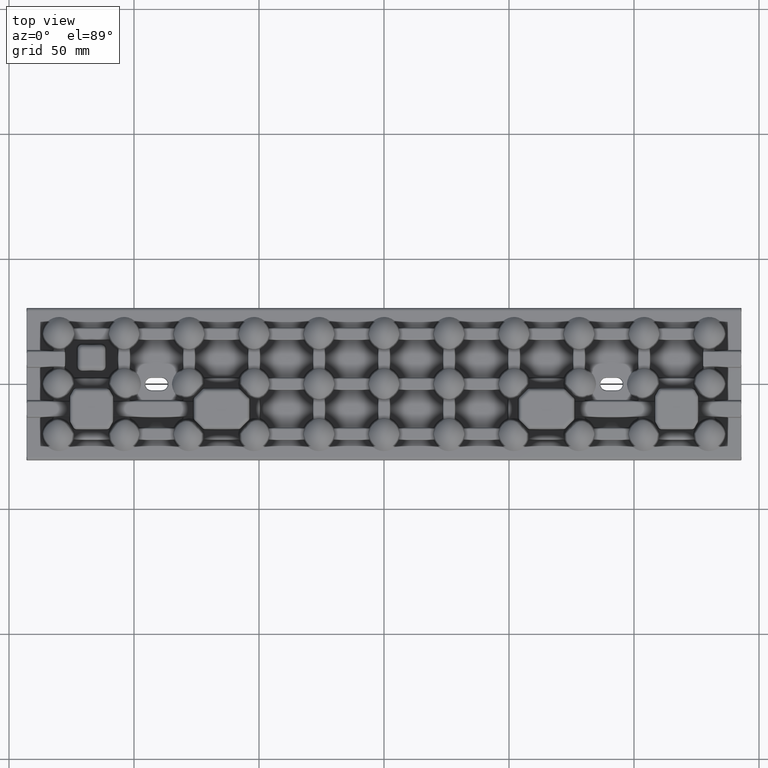
[diagram: clean part render]
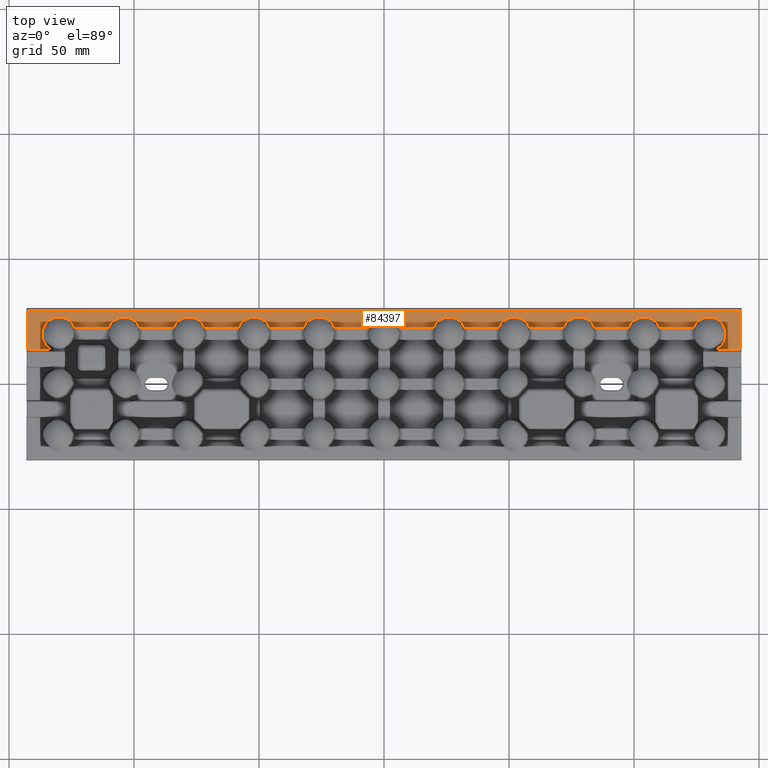
[diagram: same view with one face highlighted and labeled with its STEP entity id]
A machine part, top view. The second image highlights one B-rep face of the part: STEP entity #84397.
In plain terms, the highlighted planar face has unit normal (-0, 0, 1).
Its self-contained STEP definition (entity closure, byte-faithful):
#18 = LINE ( 'NONE', #66685, #66836 ) ;
#334 = VECTOR ( 'NONE', #104928, 1000.000000000000000 ) ;
#450 = B_SPLINE_CURVE_WITH_KNOTS ( 'NONE', 3,
 ( #22197, #72360, #89164, #39020, #97628, #47506, #106020, #55932, #5751, #64315, #14149, #72737, #22551, #81112, #30996, #89539, #39382, #97997, #47874, #106379, #56297, #6123, #64674, #14516, #73091, #22933, #81480, #31366, #89921, #39765, #98356, #48244 ),
 .UNSPECIFIED., .F., .F.,
 ( 4, 2, 2, 2, 2, 2, 2, 2, 2, 2, 2, 2, 2, 2, 2, 4 ),
 ( 0.01057141116991428300, 0.01154738486833096900, 0.01252335856674765600, 0.01447530596358102800, 0.01545127966199773100, 0.01642725336041443400, 0.01740322705883113800, 0.01837920075724783900, 0.01935517445566454400, 0.02033114815408124800, 0.02130712185249795200, 0.02228309555091465700, 0.02325906924933135400, 0.02423504294774805900, 0.02521101664616476300, 0.02618699034458146800 ),
 .UNSPECIFIED. ) ;
#949 = CARTESIAN_POINT ( 'NONE',  ( -23.44437529843119000, 26.33891143975803900, 2.000000000000348200 ) ) ;
#1567 = CARTESIAN_POINT ( 'NONE',  ( 84.15196062444513800, 22.74142219370215700, 2.000000000000000000 ) ) ;
#1578 = CARTESIAN_POINT ( 'NONE',  ( -98.65718234759718500, 24.15163868362476400, 2.000000000000082200 ) ) ;
#1692 = CARTESIAN_POINT ( 'NONE',  ( -123.8480393755548500, 22.74142219370217100, 2.000000000000000000 ) ) ;
#1933 = CARTESIAN_POINT ( 'NONE',  ( -105.2936219621999500, 26.72046173931110900, 2.000000000000000400 ) ) ;
#2221 = ORIENTED_EDGE ( 'NONE', *, *, #40043, .F. ) ;
#2292 = CARTESIAN_POINT ( 'NONE',  ( -110.0192427180098300, 23.04131414424451700, 1.999999999999998700 ) ) ;
#2368 = CARTESIAN_POINT ( 'NONE',  ( -142.4984859507544300, 13.77131854326629700, 2.000000000000000000 ) ) ;
#2829 = CARTESIAN_POINT ( 'NONE',  ( -29.41731962113369300, 25.90276748049692700, 2.000000000000001300 ) ) ;
#2964 = CARTESIAN_POINT ( 'NONE',  ( 83.87140888272630000, 23.32540910116443200, 2.000000000000000000 ) ) ;
#3043 = CARTESIAN_POINT ( 'NONE',  ( -8.743261924239526700E-015, 22.74142219370212500, 2.000000000000000000 ) ) ;
#3327 = CARTESIAN_POINT ( 'NONE',  ( 77.68442523031507100, 26.83853051785804700, 2.000000000000218900 ) ) ;
#3536 = ORIENTED_EDGE ( 'NONE', *, *, #32921, .T. ) ;
#3561 = ORIENTED_EDGE ( 'NONE', *, *, #34189, .F. ) ;
#3672 = CARTESIAN_POINT ( 'NONE',  ( 72.47237995112048700, 23.88979952692019600, 2.000000000000000400 ) ) ;
#3751 = CARTESIAN_POINT ( 'NONE',  ( -49.44437529843121100, 26.33891143975802500, 2.000000000000345500 ) ) ;
#3771 = B_SPLINE_CURVE_WITH_KNOTS ( 'NONE', 3,
 ( #28653, #20207, #70031, #87182, #37047, #95649, #45509, #104075, #53961, #3751, #62350, #12192, #70733, #20567, #79164, #29004, #87537, #37408, #95997, #45866, #104417, #54335, #4113, #62692, #12534, #71098, #20927, #79499, #29364, #87915, #37768, #96360 ),
 .UNSPECIFIED., .F., .F.,
 ( 4, 2, 2, 2, 2, 2, 2, 2, 2, 2, 2, 2, 2, 2, 2, 4 ),
 ( 0.01057141116991420900, 0.01154738486833090300, 0.01252335856674759700, 0.01447530596358099900, 0.01545127966199769800, 0.01642725336041439900, 0.01740322705883110000, 0.01837920075724780100, 0.01935517445566450200, 0.02033114815408120300, 0.02130712185249790400, 0.02228309555091460500, 0.02325906924933130600, 0.02423504294774800700, 0.02521101664616470800, 0.02618699034458140900 ),
 .UNSPECIFIED. ) ;
#3879 = VERTEX_POINT ( 'NONE', #2368 ) ;
#4002 = CARTESIAN_POINT ( 'NONE',  ( 110.0207620047317600, 23.03787826858629400, 2.000000000000023500 ) ) ;
#4113 = CARTESIAN_POINT ( 'NONE',  ( -55.41731962113367900, 25.90276748049694400, 1.999999999999999600 ) ) ;
#4360 = CARTESIAN_POINT ( 'NONE',  ( 105.6296841366106200, 26.64539749742891000, 2.000000000000625300 ) ) ;
#4733 = CARTESIAN_POINT ( 'NONE',  ( 99.78590605432748400, 25.33997753279581000, 1.999999999999999600 ) ) ;
#4806 = CARTESIAN_POINT ( 'NONE',  ( -127.6744380396608800, 26.44532750188053400, 2.000000000000000400 ) ) ;
#5071 = CARTESIAN_POINT ( 'NONE',  ( 136.3675877566048500, 17.74256149048456500, 1.999999999999999600 ) ) ;
#5178 = CARTESIAN_POINT ( 'NONE',  ( -134.3702181613340400, 25.22732292226714900, 2.000000000000000900 ) ) ;
#5450 = CARTESIAN_POINT ( 'NONE',  ( 136.0262446763801200, 23.05667322217266200, 2.000000000000001300 ) ) ;
#5559 = CARTESIAN_POINT ( 'NONE',  ( -136.8391399828375700, 19.88003251086326600, 2.000000000000000900 ) ) ;
#5751 = CARTESIAN_POINT ( 'NONE',  ( -74.85653935513144600, 26.05896061262566500, 2.000000000000347700 ) ) ;
#5921 = CARTESIAN_POINT ( 'NONE',  ( -133.7449493275373400, 14.31046766925076600, 2.000000000000000400 ) ) ;
#6123 = CARTESIAN_POINT ( 'NONE',  ( -81.13050794176584200, 26.06605830409206000, 2.000000000000000000 ) ) ;
#6202 = B_SPLINE_CURVE_WITH_KNOTS ( 'NONE', 3,
 ( #31971, #40737, #99326, #49208, #107708, #57613, #7457, #66008, #15862, #74416, #24249, #82798, #32666, #91236, #41095, #99683, #49556, #108057, #57968, #7806, #66349, #16210, #74752, #24594, #83160, #33021, #91582, #41457, #100045, #49904, #108395, #58330 ),
 .UNSPECIFIED., .F., .F.,
 ( 4, 2, 2, 2, 2, 2, 2, 2, 2, 2, 2, 2, 2, 2, 2, 4 ),
 ( 0.01057141116991426400, 0.01154738486833096200, 0.01252335856674765900, 0.01447530596358104600, 0.01545127966199774000, 0.01642725336041443400, 0.01740322705883112800, 0.01837920075724782200, 0.01935517445566451600, 0.02033114815408121000, 0.02130712185249790400, 0.02228309555091459400, 0.02325906924933129200, 0.02423504294774798300, 0.02521101664616468000, 0.02618699034458137100 ),
 .UNSPECIFIED. ) ;
#6243 = CARTESIAN_POINT ( 'NONE',  ( 55.43101788131251300, 25.89457628167086900, 2.000000000000433900 ) ) ;
#6586 = VECTOR ( 'NONE', #96251, 1000.000000000000000 ) ;
#6601 = CARTESIAN_POINT ( 'NONE',  ( 49.46240690316457700, 26.34651873856308400, 2.000000000000000000 ) ) ;
#6602 = VERTEX_POINT ( 'NONE', #55331 ) ;
#6873 = VECTOR ( 'NONE', #65279, 1000.000000000000000 ) ;
#7311 = CARTESIAN_POINT ( 'NONE',  ( 129.2932381157706600, 26.80635551146549400, 2.000000000000023500 ) ) ;
#7457 = CARTESIAN_POINT ( 'NONE',  ( 30.24389875171748100, 25.34645184702481700, 2.000000000000433000 ) ) ;
#7652 = CARTESIAN_POINT ( 'NONE',  ( 71.84803801582891900, 22.74142219370215300, 2.000000000000000000 ) ) ;
#7663 = CARTESIAN_POINT ( 'NONE',  ( 123.9593216929385400, 22.99287836850768200, 1.999999999999999100 ) ) ;
#7678 = CARTESIAN_POINT ( 'NONE',  ( 4.721671804838689600, 24.91052300602595400, 2.000000000000082200 ) ) ;
#7806 = CARTESIAN_POINT ( 'NONE',  ( 23.76628688657680000, 26.46287864043587100, 2.000000000000000000 ) ) ;
#8045 = CARTESIAN_POINT ( 'NONE',  ( -1.611719585631966600, 26.64982454061431100, 2.000000000000000000 ) ) ;
#8400 = CARTESIAN_POINT ( 'NONE',  ( -6.151961984171039800, 22.74142219370212500, 2.000000000000000000 ) ) ;
#9057 = EDGE_CURVE ( 'NONE', #49669, #52571, #6202, .T. ) ;
#9174 = LINE ( 'NONE', #29617, #6586 ) ;
#9400 = CARTESIAN_POINT ( 'NONE',  ( -24.37031586338929000, 26.64539749742891000, 2.000000000000626600 ) ) ;
#10012 = CARTESIAN_POINT ( 'NONE',  ( -99.75610124828263300, 25.34645184702481700, 2.000000000000433400 ) ) ;
#10364 = CARTESIAN_POINT ( 'NONE',  ( -106.2337131134232100, 26.46287864043588900, 2.000000000000000000 ) ) ;
#11030 = CARTESIAN_POINT ( 'NONE',  ( 84.02076200473179300, 23.03787826858626500, 2.000000000000024000 ) ) ;
#11251 = CARTESIAN_POINT ( 'NONE',  ( -30.21409394567247400, 25.33997753279584200, 1.999999999999998700 ) ) ;
#11388 = CARTESIAN_POINT ( 'NONE',  ( 83.34281765240287100, 24.15163868362480700, 2.000000000000080800 ) ) ;
#11434 = VERTEX_POINT ( 'NONE', #35529 ) ;
#11738 = CARTESIAN_POINT ( 'NONE',  ( 76.70637803780013500, 26.72046173931110500, 2.000000000000000000 ) ) ;
#11995 = ORIENTED_EDGE ( 'NONE', *, *, #44793, .T. ) ;
#12110 = CARTESIAN_POINT ( 'NONE',  ( 71.98075728199016500, 23.04131414424447800, 1.999999999999999100 ) ) ;
#12192 = CARTESIAN_POINT ( 'NONE',  ( -50.37031586338929400, 26.64539749742892400, 2.000000000000625700 ) ) ;
#12470 = B_SPLINE_CURVE_WITH_KNOTS ( 'NONE', 3,
 ( #44689, #11030, #2964, #61536, #11388, #69947, #19775, #78372, #28218, #86734, #36614, #95208, #45074, #103635, #53524, #3327, #61912, #11738, #70303, #20140, #78737, #28567, #87106, #36972, #95570, #45430, #103996, #53882, #3672, #62267, #12110, #70659 ),
 .UNSPECIFIED., .F., .F.,
 ( 4, 2, 2, 2, 2, 2, 2, 2, 2, 2, 2, 2, 2, 2, 2, 4 ),
 ( 0.01057141116991425600, 0.01154738486833097700, 0.01252335856674769900, 0.01447530596358112500, 0.01545127966199785400, 0.01642725336041458300, 0.01740322705883131500, 0.01837920075724804700, 0.01935517445566477600, 0.02033114815408150500, 0.02130712185249823700, 0.02228309555091496900, 0.02325906924933169800, 0.02423504294774842700, 0.02521101664616515900, 0.02618699034458188800 ),
 .UNSPECIFIED. ) ;
#12534 = CARTESIAN_POINT ( 'NONE',  ( -56.21409394567246700, 25.33997753279584900, 2.000000000000000400 ) ) ;
#12786 = CARTESIAN_POINT ( 'NONE',  ( 104.6593584921966600, 26.81360181039919200, 2.000000000000006200 ) ) ;
#13124 = VECTOR ( 'NONE', #36339, 1000.000000000000000 ) ;
#13143 = ORIENTED_EDGE ( 'NONE', *, *, #23022, .T. ) ;
#13156 = CARTESIAN_POINT ( 'NONE',  ( 99.07405729496086600, 24.66061445378244000, 2.000000000000000000 ) ) ;
#13227 = CARTESIAN_POINT ( 'NONE',  ( -129.2795210807344700, 26.82214615123828600, 2.000000000000001800 ) ) ;
#13357 = CARTESIAN_POINT ( 'NONE',  ( -32.15196198417103800, 22.74142219370213500, 2.000000000000000000 ) ) ;
#13499 = CARTESIAN_POINT ( 'NONE',  ( 136.7185444569904900, 19.06772900883379100, 2.000000000000000400 ) ) ;
#13607 = CARTESIAN_POINT ( 'NONE',  ( -135.4697725086020100, 23.99765585386930800, 2.000000000000000400 ) ) ;
#13865 = CARTESIAN_POINT ( 'NONE',  ( 135.1351254606241800, 24.44019271961407800, 2.000000000000000400 ) ) ;
#13969 = CARTESIAN_POINT ( 'NONE',  ( -136.7682508985336100, 19.33309388607448700, 1.999999999999999600 ) ) ;
#14130 = CARTESIAN_POINT ( 'NONE',  ( -45.84803937555484100, 22.74142219370213900, 2.000000000000000000 ) ) ;
#14149 = CARTESIAN_POINT ( 'NONE',  ( -75.74716848546259500, 26.45610155375744200, 2.000000000000627100 ) ) ;
#14317 = CARTESIAN_POINT ( 'NONE',  ( -133.0371652792425700, 13.88754632978832100, 1.999999999999999600 ) ) ;
#14439 = ORIENTED_EDGE ( 'NONE', *, *, #34487, .T. ) ;
#14516 = CARTESIAN_POINT ( 'NONE',  ( -81.95797073317177700, 25.54024367878727400, 2.000000000000000400 ) ) ;
#14629 = CARTESIAN_POINT ( 'NONE',  ( 54.55562470156877500, 26.33891143975804600, 2.000000000000345500 ) ) ;
#15000 = CARTESIAN_POINT ( 'NONE',  ( 48.58268037886631400, 25.90276748049693000, 1.999999999999999600 ) ) ;
#15060 = VECTOR ( 'NONE', #62345, 1000.000000000000000 ) ;
#15724 = CARTESIAN_POINT ( 'NONE',  ( 128.2099995651465700, 26.61813430337587500, 2.000000000000089700 ) ) ;
#15862 = CARTESIAN_POINT ( 'NONE',  ( 29.14346064486860400, 26.05896061262564700, 2.000000000000347700 ) ) ;
#15996 = LINE ( 'NONE', #56911, #6873 ) ;
#16087 = CARTESIAN_POINT ( 'NONE',  ( 3.431017881312520500, 25.89457628167087200, 2.000000000000434300 ) ) ;
#16210 = CARTESIAN_POINT ( 'NONE',  ( 22.86949205823417900, 26.06605830409207400, 2.000000000000000000 ) ) ;
#16431 = CARTESIAN_POINT ( 'NONE',  ( -2.537593096835431900, 26.34651873856307300, 2.000000000000000400 ) ) ;
#17204 = VECTOR ( 'NONE', #29951, 1000.000000000000000 ) ;
#17440 = CARTESIAN_POINT ( 'NONE',  ( -19.84803937555484100, 22.74142219370212800, 2.000000000000000000 ) ) ;
#17589 = VERTEX_POINT ( 'NONE', #13357 ) ;
#18031 = CARTESIAN_POINT ( 'NONE',  ( -97.84803937555484800, 22.74142219370216000, 2.000000000000000000 ) ) ;
#18396 = CARTESIAN_POINT ( 'NONE',  ( -100.8565393551314000, 26.05896061262563300, 2.000000000000348200 ) ) ;
#18767 = CARTESIAN_POINT ( 'NONE',  ( -107.1305079417657700, 26.06605830409209900, 1.999999999999999600 ) ) ;
#19284 = CARTESIAN_POINT ( 'NONE',  ( -25.34064150780322700, 26.81360181039918800, 2.000000000000007500 ) ) ;
#19644 = CARTESIAN_POINT ( 'NONE',  ( -30.92594270503907300, 24.66061445378241500, 2.000000000000000900 ) ) ;
#19775 = CARTESIAN_POINT ( 'NONE',  ( 82.24389875171746700, 25.34645184702479500, 2.000000000000432100 ) ) ;
#19951 = ORIENTED_EDGE ( 'NONE', *, *, #20558, .F. ) ;
#19962 = CARTESIAN_POINT ( 'NONE',  ( -6.151961984171039800, 22.74142219370212500, 2.000000000000000000 ) ) ;
#20140 = CARTESIAN_POINT ( 'NONE',  ( 75.76628688657679300, 26.46287864043589300, 2.000000000000000900 ) ) ;
#20207 = CARTESIAN_POINT ( 'NONE',  ( -45.97923799526815000, 23.03787826858626500, 2.000000000000025300 ) ) ;
#20542 = EDGE_CURVE ( 'NONE', #49669, #95098, #50029, .T. ) ;
#20558 = EDGE_CURVE ( 'NONE', #33507, #67232, #3771, .T. ) ;
#20567 = CARTESIAN_POINT ( 'NONE',  ( -51.34064150780322700, 26.81360181039918100, 2.000000000000008400 ) ) ;
#20690 = ORIENTED_EDGE ( 'NONE', *, *, #20872, .T. ) ;
#20823 = CARTESIAN_POINT ( 'NONE',  ( 109.8714088827263000, 23.32540910116446400, 2.000000000000000000 ) ) ;
#20872 = EDGE_CURVE ( 'NONE', #33507, #17589, #39479, .T. ) ;
#20927 = CARTESIAN_POINT ( 'NONE',  ( -56.92594270503907000, 24.66061445378241500, 2.000000000000000900 ) ) ;
#20988 = B_SPLINE_CURVE_WITH_KNOTS ( 'NONE', 3,
 ( #18031, #34884, #101884, #51763, #1578, #60167, #10012, #68554, #18396, #76979, #26828, #85363, #35242, #93818, #43683, #102255, #52109, #1933, #60535, #10364, #68924, #18767, #77357, #27192, #85735, #35611, #94179, #44042, #102618, #52485, #2292, #60893 ),
 .UNSPECIFIED., .F., .F.,
 ( 4, 2, 2, 2, 2, 2, 2, 2, 2, 2, 2, 2, 2, 2, 2, 4 ),
 ( 0.01057141116991441900, 0.01154738486833110400, 0.01252335856674778900, 0.01447530596358118600, 0.01545127966199789900, 0.01642725336041461100, 0.01740322705883132600, 0.01837920075724804000, 0.01935517445566475200, 0.02033114815408146300, 0.02130712185249817800, 0.02228309555091489300, 0.02325906924933160400, 0.02423504294774831600, 0.02521101664616503000, 0.02618699034458174200 ),
 .UNSPECIFIED. ) ;
#21176 = EDGE_CURVE ( 'NONE', #24155, #17589, #31464, .T. ) ;
#21179 = CARTESIAN_POINT ( 'NONE',  ( 103.6844252303150000, 26.83853051785804300, 2.000000000000218500 ) ) ;
#21517 = CARTESIAN_POINT ( 'NONE',  ( 133.7508440218574900, 14.29423795403462100, 1.999999999999999100 ) ) ;
#21553 = CARTESIAN_POINT ( 'NONE',  ( 98.47237995112048700, 23.88979952692021100, 2.000000000000000000 ) ) ;
#21625 = CARTESIAN_POINT ( 'NONE',  ( -130.6442631379003100, 26.81266599383889100, 2.000000000000025800 ) ) ;
#21882 = CARTESIAN_POINT ( 'NONE',  ( 136.8239463917344700, 19.74946107886430700, 1.999999999999999100 ) ) ;
#21988 = CARTESIAN_POINT ( 'NONE',  ( -136.0146037593524400, 23.04607095764922400, 2.000000000000001800 ) ) ;
#22197 = CARTESIAN_POINT ( 'NONE',  ( -71.84803937555484800, 22.74142219370214900, 2.000000000000000000 ) ) ;
#22255 = CARTESIAN_POINT ( 'NONE',  ( 133.9552022225659600, 25.56083008111921700, 2.000000000000000900 ) ) ;
#22357 = CARTESIAN_POINT ( 'NONE',  ( -136.5331077790673900, 18.25631906052438700, 1.999999999999999600 ) ) ;
#22551 = CARTESIAN_POINT ( 'NONE',  ( -76.69340581394433800, 26.71782383062980800, 2.000000000000007100 ) ) ;
#22781 = CARTESIAN_POINT ( 'NONE',  ( 0.0000000000000000000, 13.77131854326629700, 2.000000000000000000 ) ) ;
#22933 = CARTESIAN_POINT ( 'NONE',  ( -82.69766114096128700, 24.90106938325972400, 2.000000000000000900 ) ) ;
#23022 = EDGE_CURVE ( 'NONE', #24155, #71206, #79907, .T. ) ;
#23048 = CARTESIAN_POINT ( 'NONE',  ( 53.62968413661066300, 26.64539749742891300, 2.000000000000626200 ) ) ;
#23406 = CARTESIAN_POINT ( 'NONE',  ( 47.78590605432753300, 25.33997753279584200, 2.000000000000000400 ) ) ;
#23465 = ORIENTED_EDGE ( 'NONE', *, *, #24884, .F. ) ;
#24105 = CARTESIAN_POINT ( 'NONE',  ( 126.9445230381564300, 26.10288935195688600, 2.000000000000000900 ) ) ;
#24155 = VERTEX_POINT ( 'NONE', #29825 ) ;
#24200 = DIRECTION ( 'NONE',  ( 1.000000000000000000, -3.844641663027053000E-016, 0.0000000000000000000 ) ) ;
#24249 = CARTESIAN_POINT ( 'NONE',  ( 28.25283151453744800, 26.45610155375743100, 2.000000000000626600 ) ) ;
#24473 = CARTESIAN_POINT ( 'NONE',  ( 2.555624701568800700, 26.33891143975803900, 2.000000000000345900 ) ) ;
#24594 = CARTESIAN_POINT ( 'NONE',  ( 22.04202926682820500, 25.54024367878726300, 2.000000000000001800 ) ) ;
#24826 = CARTESIAN_POINT ( 'NONE',  ( -3.417319621133669800, 25.90276748049693000, 2.000000000000000900 ) ) ;
#24884 = EDGE_CURVE ( 'NONE', #103681, #26551, #27928, .T. ) ;
#25449 = DIRECTION ( 'NONE',  ( -0.0000000000000000000, 1.000000000000000000, -0.0000000000000000000 ) ) ;
#25615 = VERTEX_POINT ( 'NONE', #98576 ) ;
#25832 = CARTESIAN_POINT ( 'NONE',  ( -20.12859111727369300, 23.32540910116439300, 2.000000000000000900 ) ) ;
#26454 = EDGE_CURVE ( 'NONE', #63053, #95098, #75547, .T. ) ;
#26551 = VERTEX_POINT ( 'NONE', #43862 ) ;
#26828 = CARTESIAN_POINT ( 'NONE',  ( -101.7471684854625800, 26.45610155375743100, 2.000000000000625700 ) ) ;
#26983 = EDGE_CURVE ( 'NONE', #69045, #11434, #29812, .T. ) ;
#27192 = CARTESIAN_POINT ( 'NONE',  ( -107.9579707331718200, 25.54024367878726300, 2.000000000000000900 ) ) ;
#27472 = ORIENTED_EDGE ( 'NONE', *, *, #9057, .F. ) ;
#27701 = CARTESIAN_POINT ( 'NONE',  ( -26.31557476968492200, 26.83853051785804300, 2.000000000000217600 ) ) ;
#27928 = B_SPLINE_CURVE_WITH_KNOTS ( 'NONE', 3,
 ( #37986, #63275, #21517, #80072, #29932, #88496, #38359, #96952, #46831, #105354, #55264, #5071, #63635, #13499, #72052, #21882, #80452, #30313, #88860, #38704, #97326, #47204, #105719, #55645, #5450, #64007, #13865, #72434, #22255, #80814, #30690, #89227, #39084, #97690, #47575, #106093, #55989, #7311, #65859, #15724, #74279, #24105, #82655, #32527, #91101, #40947, #99549, #49416, #107918, #57828, #7663, #66212 ),
 .UNSPECIFIED., .F., .F.,
 ( 4, 2, 2, 2, 2, 2, 2, 2, 2, 2, 2, 2, 2, 2, 2, 2, 2, 2, 2, 2, 2, 2, 2, 2, 2, 4 ),
 ( 0.0000000000000000000, 0.001636686896536398100, 0.002455030344804629300, 0.003273373793072860800, 0.004091717241341092900, 0.004910060689609323600, 0.006546747586145787600, 0.007365091034414019200, 0.007774262758548128500, 0.008183434482682239500, 0.009001777930950473700, 0.009820121379218704400, 0.01145680827575519700, 0.01309349517229168800, 0.01473018206882818100, 0.01636686896536467000, 0.01718521241363291400, 0.01800355586190116200, 0.01882189931016940700, 0.01964024275843765200, 0.02127692965497406100, 0.02209527310324222900, 0.02291361655151039800, 0.02455030344804666500, 0.02536864689631480900, 0.02618699034458294600 ),
 .UNSPECIFIED. ) ;
#28069 = CARTESIAN_POINT ( 'NONE',  ( -31.52762004887951600, 23.88979952692020000, 2.000000000000000400 ) ) ;
#28218 = CARTESIAN_POINT ( 'NONE',  ( 81.14346064486859700, 26.05896061262564000, 2.000000000000347700 ) ) ;
#28293 = EDGE_CURVE ( 'NONE', #63053, #72471, #15996, .T. ) ;
#28535 = FACE_OUTER_BOUND ( 'NONE', #53636, .T. ) ;
#28567 = CARTESIAN_POINT ( 'NONE',  ( 74.86949205823414400, 26.06605830409205600, 2.000000000000000400 ) ) ;
#28596 = VERTEX_POINT ( 'NONE', #102170 ) ;
#28653 = CARTESIAN_POINT ( 'NONE',  ( -45.84803937555484100, 22.74142219370213900, 2.000000000000000000 ) ) ;
#28921 = EDGE_CURVE ( 'NONE', #107744, #71206, #67514, .T. ) ;
#29004 = CARTESIAN_POINT ( 'NONE',  ( -52.31557476968492900, 26.83853051785804300, 2.000000000000218500 ) ) ;
#29165 = ORIENTED_EDGE ( 'NONE', *, *, #29214, .T. ) ;
#29214 = EDGE_CURVE ( 'NONE', #107744, #52571, #69762, .T. ) ;
#29253 = CARTESIAN_POINT ( 'NONE',  ( 109.3428176524028100, 24.15163868362482400, 2.000000000000082200 ) ) ;
#29364 = CARTESIAN_POINT ( 'NONE',  ( -57.52762004887951300, 23.88979952692021100, 2.000000000000000000 ) ) ;
#29610 = CARTESIAN_POINT ( 'NONE',  ( 102.7063780378000600, 26.72046173931108700, 2.000000000000002200 ) ) ;
#29617 = CARTESIAN_POINT ( 'NONE',  ( -142.4984859507544300, 0.0000000000000000000, 2.000000000000000000 ) ) ;
#29675 = CARTESIAN_POINT ( 'NONE',  ( -124.3390428794789800, 23.71134685562781300, 2.000000000000000900 ) ) ;
#29812 = LINE ( 'NONE', #50412, #52102 ) ;
#29825 = CARTESIAN_POINT ( 'NONE',  ( -19.84803937555484100, 22.74142219370212800, 2.000000000000000000 ) ) ;
#29932 = CARTESIAN_POINT ( 'NONE',  ( 134.5925281702215300, 14.99915913528843500, 2.000000000000100800 ) ) ;
#29951 = DIRECTION ( 'NONE',  ( 1.000000000000000000, -3.844641663027053000E-016, 0.0000000000000000000 ) ) ;
#29964 = VERTEX_POINT ( 'NONE', #50612 ) ;
#29971 = CARTESIAN_POINT ( 'NONE',  ( 97.98075728199022200, 23.04131414424451300, 2.000000000000000900 ) ) ;
#30044 = CARTESIAN_POINT ( 'NONE',  ( -131.4604052493520800, 26.68302427961935300, 2.000000000000047500 ) ) ;
#30313 = CARTESIAN_POINT ( 'NONE',  ( 136.8354646314735100, 20.16291612040159000, 1.999999999999942300 ) ) ;
#30423 = CARTESIAN_POINT ( 'NONE',  ( -136.3404809522086800, 22.28873985770135100, 2.000000000000000000 ) ) ;
#30690 = CARTESIAN_POINT ( 'NONE',  ( 132.5196641739540300, 26.36950908470500800, 2.000000000000824200 ) ) ;
#30793 = CARTESIAN_POINT ( 'NONE',  ( -136.0336336750455600, 16.99291515085384700, 2.000000000000000900 ) ) ;
#30839 = EDGE_CURVE ( 'NONE', #103681, #69045, #31669, .T. ) ;
#30996 = CARTESIAN_POINT ( 'NONE',  ( -77.66508054944266300, 26.83759033489347700, 2.000000000000218500 ) ) ;
#31120 = CARTESIAN_POINT ( 'NONE',  ( 58.02076200473184300, 23.03787826858628000, 2.000000000000024900 ) ) ;
#31366 = CARTESIAN_POINT ( 'NONE',  ( -83.33990465450251900, 24.15553530996389500, 1.999999999999999600 ) ) ;
#31464 = B_SPLINE_CURVE_WITH_KNOTS ( 'NONE', 3,
 ( #17440, #92505, #25832, #84403, #34273, #92836, #42703, #101287, #51168, #949, #59572, #9400, #69441, #19284, #77871, #27701, #86240, #36128, #94694, #44551, #103139, #53032, #2829, #61395, #11251, #69807, #19644, #78235, #28069, #86598, #36474, #95063 ),
 .UNSPECIFIED., .F., .F.,
 ( 4, 2, 2, 2, 2, 2, 2, 2, 2, 2, 2, 2, 2, 2, 2, 4 ),
 ( 0.01057141116991422800, 0.01154738486833092700, 0.01252335856674762800, 0.01447530596358104200, 0.01545127966199774500, 0.01642725336041444800, 0.01740322705883115200, 0.01837920075724785300, 0.01935517445566455700, 0.02033114815408126200, 0.02130712185249796600, 0.02228309555091467100, 0.02325906924933136800, 0.02423504294774807300, 0.02521101664616478400, 0.02618699034458149600 ),
 .UNSPECIFIED. ) ;
#31489 = CARTESIAN_POINT ( 'NONE',  ( 52.65935849219675200, 26.81360181039918100, 2.000000000000006700 ) ) ;
#31669 = LINE ( 'NONE', #22781, #98493 ) ;
#31842 = CARTESIAN_POINT ( 'NONE',  ( 47.07405729496091600, 24.66061445378244300, 2.000000000000000000 ) ) ;
#31971 = CARTESIAN_POINT ( 'NONE',  ( 32.15196062444513800, 22.74142219370213900, 2.000000000000000000 ) ) ;
#32361 = EDGE_CURVE ( 'NONE', #29964, #28596, #450, .T. ) ;
#32527 = CARTESIAN_POINT ( 'NONE',  ( 126.2387186430475300, 25.67823744233036000, 2.000000000000000000 ) ) ;
#32666 = CARTESIAN_POINT ( 'NONE',  ( 27.30659418605569000, 26.71782383062981100, 2.000000000000007100 ) ) ;
#32891 = CARTESIAN_POINT ( 'NONE',  ( 1.629684136610710400, 26.64539749742892700, 2.000000000000626200 ) ) ;
#32921 = EDGE_CURVE ( 'NONE', #11434, #64197, #18, .T. ) ;
#33021 = CARTESIAN_POINT ( 'NONE',  ( 21.30233885903873100, 24.90106938325968100, 1.999999999999998700 ) ) ;
#33222 = EDGE_CURVE ( 'NONE', #64197, #3879, #9174, .T. ) ;
#33248 = CARTESIAN_POINT ( 'NONE',  ( -4.214093945672477300, 25.33997753279583200, 2.000000000000000000 ) ) ;
#33507 = VERTEX_POINT ( 'NONE', #14130 ) ;
#33795 = AXIS2_PLACEMENT_3D ( 'NONE', #84538, #34406, #92980 ) ;
#33880 = LINE ( 'NONE', #66653, #56228 ) ;
#34189 = EDGE_CURVE ( 'NONE', #82870, #72471, #12470, .T. ) ;
#34273 = CARTESIAN_POINT ( 'NONE',  ( -20.65718234759712100, 24.15163868362477800, 2.000000000000083000 ) ) ;
#34406 = DIRECTION ( 'NONE',  ( -0.0000000000000000000, 0.0000000000000000000, 1.000000000000000000 ) ) ;
#34487 = EDGE_CURVE ( 'NONE', #82870, #25615, #95517, .T. ) ;
#34884 = CARTESIAN_POINT ( 'NONE',  ( -97.97923799526827800, 23.03787826858624800, 2.000000000000024000 ) ) ;
#35242 = CARTESIAN_POINT ( 'NONE',  ( -102.6934058139443000, 26.71782383062979300, 2.000000000000008000 ) ) ;
#35529 = CARTESIAN_POINT ( 'NONE',  ( 142.4984859507544300, 29.17765049216839300, 2.000000000000000000 ) ) ;
#35611 = CARTESIAN_POINT ( 'NONE',  ( -108.6976611409612600, 24.90106938325972800, 2.000000000000000900 ) ) ;
#36128 = CARTESIAN_POINT ( 'NONE',  ( -27.29362196219989300, 26.72046173931110100, 2.000000000000001300 ) ) ;
#36339 = DIRECTION ( 'NONE',  ( 1.000000000000000000, -3.844641663027053000E-016, 0.0000000000000000000 ) ) ;
#36474 = CARTESIAN_POINT ( 'NONE',  ( -32.01924271800987000, 23.04131414424448800, 2.000000000000000900 ) ) ;
#36614 = CARTESIAN_POINT ( 'NONE',  ( 80.25283151453746200, 26.45610155375741000, 2.000000000000626200 ) ) ;
#36972 = CARTESIAN_POINT ( 'NONE',  ( 74.04202926682815200, 25.54024367878726000, 2.000000000000000400 ) ) ;
#37047 = CARTESIAN_POINT ( 'NONE',  ( -46.65718234759714300, 24.15163868362480000, 2.000000000000081700 ) ) ;
#37408 = CARTESIAN_POINT ( 'NONE',  ( -53.29362196219990700, 26.72046173931111600, 2.000000000000001800 ) ) ;
#37657 = CARTESIAN_POINT ( 'NONE',  ( 108.2438987517174000, 25.34645184702487700, 2.000000000000433400 ) ) ;
#37768 = CARTESIAN_POINT ( 'NONE',  ( -58.01924271800985600, 23.04131414424449200, 2.000000000000000900 ) ) ;
#37917 = CARTESIAN_POINT ( 'NONE',  ( -8.743261924239526700E-015, 22.74142219370212500, 2.000000000000000000 ) ) ;
#37986 = CARTESIAN_POINT ( 'NONE',  ( 132.7862109191182800, 13.77131854326629700, 2.000000000000000000 ) ) ;
#38020 = CARTESIAN_POINT ( 'NONE',  ( 101.7662868865767200, 26.46287864043587100, 2.000000000000001300 ) ) ;
#38096 = CARTESIAN_POINT ( 'NONE',  ( -125.3745853245269800, 24.99194468524967800, 2.000000000000000400 ) ) ;
#38359 = CARTESIAN_POINT ( 'NONE',  ( 135.1505378277595100, 15.60497902901259000, 1.999999999999999100 ) ) ;
#38463 = CARTESIAN_POINT ( 'NONE',  ( -132.2457322329827300, 26.45607463026625400, 1.999999999999998200 ) ) ;
#38704 = CARTESIAN_POINT ( 'NONE',  ( 136.7607149479803800, 20.70924333262259900, 1.999999999999999100 ) ) ;
#38814 = CARTESIAN_POINT ( 'NONE',  ( -136.5862860728572600, 21.50650993292856200, 2.000000000000001300 ) ) ;
#39020 = CARTESIAN_POINT ( 'NONE',  ( -72.46659411937228900, 23.88115142161350900, 2.000000000000000000 ) ) ;
#39084 = CARTESIAN_POINT ( 'NONE',  ( 131.4707603482334800, 26.68074804138460400, 2.000000000000000900 ) ) ;
#39186 = CARTESIAN_POINT ( 'NONE',  ( -135.6337730283662200, 16.27646697009746600, 2.000000000000000000 ) ) ;
#39382 = CARTESIAN_POINT ( 'NONE',  ( -78.64297896627351700, 26.81527342270904400, 2.000000000000000900 ) ) ;
#39408 = ORIENTED_EDGE ( 'NONE', *, *, #20542, .T. ) ;
#39479 = LINE ( 'NONE', #95521, #17204 ) ;
#39508 = CARTESIAN_POINT ( 'NONE',  ( 57.87140888272630700, 23.32540910116444300, 2.000000000000000000 ) ) ;
#39561 = CARTESIAN_POINT ( 'NONE',  ( -142.4984859507544300, 29.17765049216839300, 2.000000000000000000 ) ) ;
#39765 = CARTESIAN_POINT ( 'NONE',  ( -83.86694255218407100, 23.33359511864936000, 2.000000000000000000 ) ) ;
#39882 = CARTESIAN_POINT ( 'NONE',  ( 51.68442523031508500, 26.83853051785804300, 2.000000000000218500 ) ) ;
#40043 = EDGE_CURVE ( 'NONE', #95028, #6602, #20988, .T. ) ;
#40254 = CARTESIAN_POINT ( 'NONE',  ( 46.47237995112048000, 23.88979952692020000, 1.999999999999999100 ) ) ;
#40578 = DIRECTION ( 'NONE',  ( 1.000000000000000000, -3.844641663027053000E-016, 0.0000000000000000000 ) ) ;
#40737 = CARTESIAN_POINT ( 'NONE',  ( 32.02076200473187100, 23.03787826858626900, 2.000000000000024000 ) ) ;
#40770 = ORIENTED_EDGE ( 'NONE', *, *, #26983, .T. ) ;
#40947 = CARTESIAN_POINT ( 'NONE',  ( 125.3837817324682500, 25.00108145446149200, 1.999999999999998700 ) ) ;
#40969 = CARTESIAN_POINT ( 'NONE',  ( 6.020762004731850900, 23.03787826858624800, 2.000000000000024900 ) ) ;
#41095 = CARTESIAN_POINT ( 'NONE',  ( 26.33491945055736100, 26.83759033489347700, 2.000000000000218500 ) ) ;
#41319 = CARTESIAN_POINT ( 'NONE',  ( 0.6593584921967683400, 26.81360181039918400, 2.000000000000007500 ) ) ;
#41457 = CARTESIAN_POINT ( 'NONE',  ( 20.66009534549743500, 24.15553530996385600, 2.000000000000000000 ) ) ;
#41687 = CARTESIAN_POINT ( 'NONE',  ( -4.925942705039077800, 24.66061445378239700, 2.000000000000000900 ) ) ;
#42162 = DIRECTION ( 'NONE',  ( -1.000000000000000000, 0.0000000000000000000, -0.0000000000000000000 ) ) ;
#42357 = ORIENTED_EDGE ( 'NONE', *, *, #105068, .T. ) ;
#42703 = CARTESIAN_POINT ( 'NONE',  ( -21.75610124828253300, 25.34645184702481700, 2.000000000000434300 ) ) ;
#43178 = EDGE_CURVE ( 'NONE', #3879, #96379, #93412, .T. ) ;
#43390 = LINE ( 'NONE', #99172, #46036 ) ;
#43683 = CARTESIAN_POINT ( 'NONE',  ( -103.6650805494426600, 26.83759033489347700, 2.000000000000218500 ) ) ;
#43688 = B_SPLINE_CURVE_WITH_KNOTS ( 'NONE', 3,
 ( #62583, #4002, #20823, #79401, #29253, #87794, #37657, #96243, #46125, #104674, #54579, #4360, #62943, #12786, #71346, #21179, #79756, #29610, #88169, #38020, #96620, #46497, #105029, #54945, #4733, #63307, #13156, #71704, #21553, #80115, #29971, #88532 ),
 .UNSPECIFIED., .F., .F.,
 ( 4, 2, 2, 2, 2, 2, 2, 2, 2, 2, 2, 2, 2, 2, 2, 4 ),
 ( 0.01057141116991403700, 0.01154738486833077100, 0.01252335856674750700, 0.01447530596358097600, 0.01545127966199769300, 0.01642725336041440900, 0.01740322705883112800, 0.01837920075724784600, 0.01935517445566456100, 0.02033114815408127900, 0.02130712185249799400, 0.02228309555091471200, 0.02325906924933143100, 0.02423504294774814900, 0.02521101664616486400, 0.02618699034458158200 ),
 .UNSPECIFIED. ) ;
#43862 = CARTESIAN_POINT ( 'NONE',  ( 123.8480380158289500, 22.74142219370217100, 2.000000000000000000 ) ) ;
#44042 = CARTESIAN_POINT ( 'NONE',  ( -109.3399046545025500, 24.15553530996388400, 2.000000000000000900 ) ) ;
#44478 = EDGE_CURVE ( 'NONE', #59006, #25615, #43688, .T. ) ;
#44551 = CARTESIAN_POINT ( 'NONE',  ( -28.23371311342319600, 26.46287864043587500, 2.000000000000000400 ) ) ;
#44689 = CARTESIAN_POINT ( 'NONE',  ( 84.15196062444513800, 22.74142219370215700, 2.000000000000000000 ) ) ;
#44793 = EDGE_CURVE ( 'NONE', #59006, #26551, #105868, .T. ) ;
#45074 = CARTESIAN_POINT ( 'NONE',  ( 79.30659418605566200, 26.71782383062981100, 2.000000000000007100 ) ) ;
#45430 = CARTESIAN_POINT ( 'NONE',  ( 73.30233885903871300, 24.90106938325970300, 1.999999999999999100 ) ) ;
#45509 = CARTESIAN_POINT ( 'NONE',  ( -47.75610124828253300, 25.34645184702482400, 2.000000000000432500 ) ) ;
#45595 = ORIENTED_EDGE ( 'NONE', *, *, #33222, .T. ) ;
#45866 = CARTESIAN_POINT ( 'NONE',  ( -54.23371311342318500, 26.46287864043586800, 1.999999999999999600 ) ) ;
#46036 = VECTOR ( 'NONE', #40578, 1000.000000000000000 ) ;
#46125 = CARTESIAN_POINT ( 'NONE',  ( 107.1434606448684800, 26.05896061262565400, 2.000000000000346800 ) ) ;
#46497 = CARTESIAN_POINT ( 'NONE',  ( 100.8694920582341300, 26.06605830409205300, 1.999999999999999600 ) ) ;
#46567 = CARTESIAN_POINT ( 'NONE',  ( -126.2255334113326600, 25.66922753463543200, 2.000000000000012000 ) ) ;
#46831 = CARTESIAN_POINT ( 'NONE',  ( 135.6293500149573100, 16.26947131515194700, 2.000000000000000400 ) ) ;
#46949 = CARTESIAN_POINT ( 'NONE',  ( -133.0005743604820900, 26.13108831474991700, 1.999999999999999100 ) ) ;
#47204 = CARTESIAN_POINT ( 'NONE',  ( 136.5841356519247800, 21.51475089012132000, 2.000000000000001300 ) ) ;
#47308 = CARTESIAN_POINT ( 'NONE',  ( -136.7620615492192800, 20.70175478765888900, 2.000000000000000900 ) ) ;
#47506 = CARTESIAN_POINT ( 'NONE',  ( -73.27832819516135000, 24.91052300602593700, 2.000000000000080800 ) ) ;
#47575 = CARTESIAN_POINT ( 'NONE',  ( 130.6570592517618600, 26.81137322473252700, 2.000000000000000400 ) ) ;
#47679 = CARTESIAN_POINT ( 'NONE',  ( -134.9875314001485500, 15.38743467454441600, 2.000000000000000900 ) ) ;
#47874 = CARTESIAN_POINT ( 'NONE',  ( -79.61171958563197400, 26.64982454061430400, 2.000000000000001300 ) ) ;
#47996 = CARTESIAN_POINT ( 'NONE',  ( 57.34281765240286400, 24.15163868362478200, 2.000000000000082200 ) ) ;
#48244 = CARTESIAN_POINT ( 'NONE',  ( -84.15196198417103800, 22.74142219370215300, 2.000000000000000000 ) ) ;
#48365 = CARTESIAN_POINT ( 'NONE',  ( 50.70637803780012800, 26.72046173931110500, 2.000000000000001300 ) ) ;
#48716 = CARTESIAN_POINT ( 'NONE',  ( 45.98075728199014400, 23.04131414424451000, 2.000000000000001300 ) ) ;
#48764 = CARTESIAN_POINT ( 'NONE',  ( 45.84803801582892600, 22.74142219370214200, 2.000000000000000000 ) ) ;
#49208 = CARTESIAN_POINT ( 'NONE',  ( 31.53340588062771800, 23.88115142161348800, 2.000000000000000000 ) ) ;
#49416 = CARTESIAN_POINT ( 'NONE',  ( 124.5093011110737300, 23.94039411403207400, 1.999999999999999600 ) ) ;
#49430 = CARTESIAN_POINT ( 'NONE',  ( 6.151960624445145200, 22.74142219370212800, 2.000000000000000000 ) ) ;
#49453 = B_SPLINE_CURVE_WITH_KNOTS ( 'NONE', 3,
 ( #71419, #79822, #29675, #88243, #38096, #96690, #46567, #105102, #55012, #4806, #63378, #13227, #71774, #21625, #80184, #30044, #88602, #38463, #97053, #46949, #105463, #55372, #5178, #63742, #13607, #72163, #21988, #80560, #30423, #88960, #38814, #97432, #47308, #105827, #55740, #5559, #64109, #13969, #72542, #22357, #80914, #30793, #89331, #39186, #97794, #47679, #106184, #56093, #5921, #64481, #14317, #72894 ),
 .UNSPECIFIED., .F., .F.,
 ( 4, 2, 2, 2, 2, 2, 2, 2, 2, 2, 2, 2, 2, 2, 2, 2, 2, 2, 2, 2, 2, 2, 2, 2, 2, 4 ),
 ( 0.01057141116991452800, 0.01220901935563588500, 0.01384662754135724400, 0.01466543163421789000, 0.01548423572707853700, 0.01712184391279991000, 0.01875945209852128100, 0.01957825619138196800, 0.02039706028424265200, 0.02121586437710333900, 0.02203466846996402600, 0.02367227665568547400, 0.02530988484140692100, 0.02612868893426766700, 0.02694749302712842000, 0.02776629711998916700, 0.02858510121284991300, 0.02899450325928028300, 0.02940390530571065200, 0.03022270939857140500, 0.03186031758429291900, 0.03267912167715368600, 0.03349792577001445300, 0.03513553395573604200, 0.03595433804859686500, 0.03677314214145769400 ),
 .UNSPECIFIED. ) ;
#49556 = CARTESIAN_POINT ( 'NONE',  ( 25.35702103372652500, 26.81527342270905500, 2.000000000000000000 ) ) ;
#49669 = VERTEX_POINT ( 'NONE', #66512 ) ;
#49772 = CARTESIAN_POINT ( 'NONE',  ( -0.3155747696849178200, 26.83853051785804700, 2.000000000000218900 ) ) ;
#49904 = CARTESIAN_POINT ( 'NONE',  ( 20.13305744781589400, 23.33359511864932400, 2.000000000000000900 ) ) ;
#50029 = LINE ( 'NONE', #3043, #69618 ) ;
#50141 = CARTESIAN_POINT ( 'NONE',  ( -5.527620048879509100, 23.88979952692020000, 2.000000000000000900 ) ) ;
#50412 = CARTESIAN_POINT ( 'NONE',  ( 142.4984859507544300, 0.0000000000000000000, 2.000000000000000000 ) ) ;
#50612 = CARTESIAN_POINT ( 'NONE',  ( -71.84803937555484800, 22.74142219370214900, 2.000000000000000000 ) ) ;
#51168 = CARTESIAN_POINT ( 'NONE',  ( -22.85653935513138900, 26.05896061262562900, 2.000000000000347700 ) ) ;
#51763 = CARTESIAN_POINT ( 'NONE',  ( -98.46659411937226000, 23.88115142161348800, 2.000000000000000900 ) ) ;
#52102 = VECTOR ( 'NONE', #25449, 1000.000000000000000 ) ;
#52109 = CARTESIAN_POINT ( 'NONE',  ( -104.6429789662734700, 26.81527342270905800, 2.000000000000000000 ) ) ;
#52485 = CARTESIAN_POINT ( 'NONE',  ( -109.8669425521841300, 23.33359511864936300, 2.000000000000001300 ) ) ;
#52571 = VERTEX_POINT ( 'NONE', #104820 ) ;
#53032 = CARTESIAN_POINT ( 'NONE',  ( -29.13050794176581300, 26.06605830409206300, 2.000000000000001300 ) ) ;
#53524 = CARTESIAN_POINT ( 'NONE',  ( 78.33491945055736500, 26.83759033489347700, 2.000000000000218500 ) ) ;
#53636 = EDGE_LOOP ( 'NONE', ( #23465, #56456, #40770, #3536, #45595, #72152, #64447, #55700, #2221, #73126, #83935, #42357, #19951, #20690, #73325, #13143, #95848, #29165, #27472, #39408, #69916, #61082, #3561, #14439, #78904, #11995 ) ) ;
#53882 = CARTESIAN_POINT ( 'NONE',  ( 72.66009534549741000, 24.15553530996385900, 2.000000000000000400 ) ) ;
#53961 = CARTESIAN_POINT ( 'NONE',  ( -48.85653935513141700, 26.05896061262565400, 2.000000000000345900 ) ) ;
#54335 = CARTESIAN_POINT ( 'NONE',  ( -55.13050794176582100, 26.06605830409207400, 2.000000000000000000 ) ) ;
#54579 = CARTESIAN_POINT ( 'NONE',  ( 106.2528315145373500, 26.45610155375744600, 2.000000000000625700 ) ) ;
#54945 = CARTESIAN_POINT ( 'NONE',  ( 100.0420292668281900, 25.54024367878724900, 2.000000000000001800 ) ) ;
#55012 = CARTESIAN_POINT ( 'NONE',  ( -126.9331742126776400, 26.09689324477892900, 2.000000000000001300 ) ) ;
#55264 = CARTESIAN_POINT ( 'NONE',  ( 136.0326628306754100, 16.99072140762655900, 1.999999999999999600 ) ) ;
#55331 = CARTESIAN_POINT ( 'NONE',  ( -110.1519619841710200, 22.74142219370216400, 2.000000000000000000 ) ) ;
#55372 = CARTESIAN_POINT ( 'NONE',  ( -133.9442946263635600, 25.56848074610635300, 2.000000000000594600 ) ) ;
#55645 = CARTESIAN_POINT ( 'NONE',  ( 136.2491651255333800, 22.56095004671333700, 2.000000000000000000 ) ) ;
#55700 = ORIENTED_EDGE ( 'NONE', *, *, #83159, .T. ) ;
#55740 = CARTESIAN_POINT ( 'NONE',  ( -136.8361935366944800, 20.15479992831899000, 2.000000000000000900 ) ) ;
#55932 = CARTESIAN_POINT ( 'NONE',  ( -74.56898211868752900, 25.89457628167090400, 2.000000000000432500 ) ) ;
#55989 = CARTESIAN_POINT ( 'NONE',  ( 129.8399132402179200, 26.84173586078430100, 2.000000000000023100 ) ) ;
#56093 = CARTESIAN_POINT ( 'NONE',  ( -133.9702031840527600, 14.47169899531666300, 2.000000000000020000 ) ) ;
#56228 = VECTOR ( 'NONE', #24200, 1000.000000000000000 ) ;
#56297 = CARTESIAN_POINT ( 'NONE',  ( -80.53759309683542300, 26.34651873856304900, 2.000000000000000000 ) ) ;
#56419 = CARTESIAN_POINT ( 'NONE',  ( 56.24389875171743800, 25.34645184702482700, 2.000000000000433400 ) ) ;
#56456 = ORIENTED_EDGE ( 'NONE', *, *, #30839, .T. ) ;
#56642 = EDGE_CURVE ( 'NONE', #95028, #28596, #43390, .T. ) ;
#56782 = CARTESIAN_POINT ( 'NONE',  ( 49.76628688657680800, 26.46287864043586800, 2.000000000000000900 ) ) ;
#56911 = CARTESIAN_POINT ( 'NONE',  ( -8.743261924239526700E-015, 22.74142219370212500, 2.000000000000000000 ) ) ;
#57482 = CARTESIAN_POINT ( 'NONE',  ( 5.871408882726309600, 23.32540910116441400, 2.000000000000000900 ) ) ;
#57613 = CARTESIAN_POINT ( 'NONE',  ( 30.72167180483867100, 24.91052300602592600, 2.000000000000080400 ) ) ;
#57828 = CARTESIAN_POINT ( 'NONE',  ( 124.0845798909893900, 23.23942858368440400, 2.000000000000000400 ) ) ;
#57846 = CARTESIAN_POINT ( 'NONE',  ( 5.342817652402872300, 24.15163868362478500, 2.000000000000081700 ) ) ;
#57849 = CARTESIAN_POINT ( 'NONE',  ( -8.743261924239526700E-015, 22.74142219370212500, 2.000000000000000000 ) ) ;
#57968 = CARTESIAN_POINT ( 'NONE',  ( 24.38828041436803000, 26.64982454061430100, 2.000000000000000000 ) ) ;
#58200 = CARTESIAN_POINT ( 'NONE',  ( -1.293621962199895400, 26.72046173931110900, 2.000000000000001800 ) ) ;
#58330 = CARTESIAN_POINT ( 'NONE',  ( 19.84803801582893400, 22.74142219370213200, 2.000000000000000000 ) ) ;
#58554 = CARTESIAN_POINT ( 'NONE',  ( -6.019242718009863300, 23.04131414424448100, 2.000000000000001800 ) ) ;
#58882 = CARTESIAN_POINT ( 'NONE',  ( -8.743261924239526700E-015, 22.74142219370212100, 2.000000000000000000 ) ) ;
#58913 = CARTESIAN_POINT ( 'NONE',  ( 6.151960624445145200, 22.74142219370212800, 2.000000000000000000 ) ) ;
#59006 = VERTEX_POINT ( 'NONE', #76960 ) ;
#59346 = PLANE ( 'NONE',  #33795 ) ;
#59572 = CARTESIAN_POINT ( 'NONE',  ( -23.74716848546255900, 26.45610155375743100, 2.000000000000626200 ) ) ;
#60167 = CARTESIAN_POINT ( 'NONE',  ( -99.27832819516133600, 24.91052300602593300, 2.000000000000082200 ) ) ;
#60535 = CARTESIAN_POINT ( 'NONE',  ( -105.6117195856319700, 26.64982454061431800, 1.999999999999999600 ) ) ;
#60893 = CARTESIAN_POINT ( 'NONE',  ( -110.1519619841710200, 22.74142219370216400, 2.000000000000000000 ) ) ;
#61082 = ORIENTED_EDGE ( 'NONE', *, *, #28293, .T. ) ;
#61327 = VECTOR ( 'NONE', #84075, 1000.000000000000000 ) ;
#61395 = CARTESIAN_POINT ( 'NONE',  ( -29.95797073317180500, 25.54024367878726000, 2.000000000000000400 ) ) ;
#61536 = CARTESIAN_POINT ( 'NONE',  ( 83.53340588062769700, 23.88115142161350900, 2.000000000000000000 ) ) ;
#61912 = CARTESIAN_POINT ( 'NONE',  ( 77.35702103372651100, 26.81527342270905500, 1.999999999999999600 ) ) ;
#62267 = CARTESIAN_POINT ( 'NONE',  ( 72.13305744781587200, 23.33359511864932800, 2.000000000000000900 ) ) ;
#62345 = DIRECTION ( 'NONE',  ( 1.000000000000000000, -3.844641663027053000E-016, 0.0000000000000000000 ) ) ;
#62350 = CARTESIAN_POINT ( 'NONE',  ( -49.74716848546257400, 26.45610155375743500, 2.000000000000626600 ) ) ;
#62583 = CARTESIAN_POINT ( 'NONE',  ( 110.1519606244451000, 22.74142219370216400, 2.000000000000000000 ) ) ;
#62692 = CARTESIAN_POINT ( 'NONE',  ( -55.95797073317179100, 25.54024367878726700, 1.999999999999999600 ) ) ;
#62943 = CARTESIAN_POINT ( 'NONE',  ( 105.3065941860556100, 26.71782383062979000, 2.000000000000006200 ) ) ;
#63053 = VERTEX_POINT ( 'NONE', #83408 ) ;
#63275 = CARTESIAN_POINT ( 'NONE',  ( 133.2883904515425100, 14.00389863971645900, 1.999999999999999600 ) ) ;
#63307 = CARTESIAN_POINT ( 'NONE',  ( 99.30233885903868400, 24.90106938325968900, 2.000000000000000000 ) ) ;
#63378 = CARTESIAN_POINT ( 'NONE',  ( -128.1951278615683500, 26.61434452653637100, 2.000000000000001300 ) ) ;
#63635 = CARTESIAN_POINT ( 'NONE',  ( 136.5350477872917700, 18.26320856018347500, 2.000000000000000000 ) ) ;
#63742 = CARTESIAN_POINT ( 'NONE',  ( -135.1400907879241200, 24.43531675665628100, 2.000000000000000400 ) ) ;
#64007 = CARTESIAN_POINT ( 'NONE',  ( 135.4716591524875500, 23.99465778619106600, 2.000000000000000900 ) ) ;
#64109 = CARTESIAN_POINT ( 'NONE',  ( -136.8231796279971200, 19.74265911800912900, 2.000000000000000000 ) ) ;
#64197 = VERTEX_POINT ( 'NONE', #39561 ) ;
#64315 = CARTESIAN_POINT ( 'NONE',  ( -75.44437529843121100, 26.33891143975805000, 2.000000000000347300 ) ) ;
#64447 = ORIENTED_EDGE ( 'NONE', *, *, #81425, .F. ) ;
#64481 = CARTESIAN_POINT ( 'NONE',  ( -133.2789683501958700, 14.01884557398618700, 2.000000000000000400 ) ) ;
#64674 = CARTESIAN_POINT ( 'NONE',  ( -81.41731962113367200, 25.90276748049694400, 2.000000000000001800 ) ) ;
#64792 = CARTESIAN_POINT ( 'NONE',  ( 55.14346064486857600, 26.05896061262565400, 2.000000000000345900 ) ) ;
#65150 = CARTESIAN_POINT ( 'NONE',  ( 48.86949205823417900, 26.06605830409207800, 2.000000000000000000 ) ) ;
#65279 = DIRECTION ( 'NONE',  ( 1.000000000000000000, 3.844641663027053000E-016, 0.0000000000000000000 ) ) ;
#65859 = CARTESIAN_POINT ( 'NONE',  ( 129.0177282477384600, 26.77149351859835800, 2.000000000000090200 ) ) ;
#66008 = CARTESIAN_POINT ( 'NONE',  ( 29.43101788131253100, 25.89457628167085800, 2.000000000000433400 ) ) ;
#66212 = CARTESIAN_POINT ( 'NONE',  ( 123.8480380158289500, 22.74142219370217100, 2.000000000000000000 ) ) ;
#66225 = CARTESIAN_POINT ( 'NONE',  ( 4.243898751717464900, 25.34645184702482700, 2.000000000000433400 ) ) ;
#66349 = CARTESIAN_POINT ( 'NONE',  ( 23.46240690316457400, 26.34651873856307700, 2.000000000000000000 ) ) ;
#66512 = CARTESIAN_POINT ( 'NONE',  ( 32.15196062444513800, 22.74142219370213900, 2.000000000000000000 ) ) ;
#66571 = CARTESIAN_POINT ( 'NONE',  ( -2.233713113423193300, 26.46287864043587100, 1.999999999999999600 ) ) ;
#66573 = DIRECTION ( 'NONE',  ( 1.000000000000000000, 3.844641663027053000E-016, 0.0000000000000000000 ) ) ;
#66653 = CARTESIAN_POINT ( 'NONE',  ( 8.743261924239526700E-015, 22.74142219370212100, 2.000000000000000000 ) ) ;
#66685 = CARTESIAN_POINT ( 'NONE',  ( -142.8847614606772000, 29.17765049216839300, 2.000000000000000000 ) ) ;
#66836 = VECTOR ( 'NONE', #42162, 1000.000000000000000 ) ;
#67232 = VERTEX_POINT ( 'NONE', #98280 ) ;
#67514 = B_SPLINE_CURVE_WITH_KNOTS ( 'NONE', 3,
 ( #49430, #40969, #57482, #107932, #57846, #7678, #66225, #16087, #74634, #24473, #83030, #32891, #91453, #41319, #99910, #49772, #108278, #58200, #8045, #66571, #16431, #74989, #24826, #83389, #33248, #91825, #41687, #100267, #50141, #108629, #58554, #8400 ),
 .UNSPECIFIED., .F., .F.,
 ( 4, 2, 2, 2, 2, 2, 2, 2, 2, 2, 2, 2, 2, 2, 2, 4 ),
 ( 0.01057141116991419700, 0.01154738486833088900, 0.01252335856674758300, 0.01447530596358096900, 0.01545127966199766300, 0.01642725336041435400, 0.01740322705883105100, 0.01837920075724774200, 0.01935517445566443300, 0.02033114815408113000, 0.02130712185249782100, 0.02228309555091451100, 0.02325906924933120500, 0.02423504294774789600, 0.02521101664616459000, 0.02618699034458127700 ),
 .UNSPECIFIED. ) ;
#68554 = CARTESIAN_POINT ( 'NONE',  ( -100.5689821186874700, 25.89457628167084400, 2.000000000000432500 ) ) ;
#68924 = CARTESIAN_POINT ( 'NONE',  ( -106.5375930968353900, 26.34651873856307300, 1.999999999999999100 ) ) ;
#69045 = VERTEX_POINT ( 'NONE', #85661 ) ;
#69441 = CARTESIAN_POINT ( 'NONE',  ( -24.69340581394428800, 26.71782383062980800, 2.000000000000007500 ) ) ;
#69618 = VECTOR ( 'NONE', #102996, 1000.000000000000000 ) ;
#69762 = LINE ( 'NONE', #37917, #334 ) ;
#69807 = CARTESIAN_POINT ( 'NONE',  ( -30.69766114096128400, 24.90106938325969900, 1.999999999999999600 ) ) ;
#69916 = ORIENTED_EDGE ( 'NONE', *, *, #26454, .F. ) ;
#69947 = CARTESIAN_POINT ( 'NONE',  ( 82.72167180483870700, 24.91052300602591900, 2.000000000000080800 ) ) ;
#70031 = CARTESIAN_POINT ( 'NONE',  ( -46.12859111727372200, 23.32540910116441400, 2.000000000000000900 ) ) ;
#70303 = CARTESIAN_POINT ( 'NONE',  ( 76.38828041436802600, 26.64982454061429000, 2.000000000000000900 ) ) ;
#70659 = CARTESIAN_POINT ( 'NONE',  ( 71.84803801582891900, 22.74142219370215300, 2.000000000000000000 ) ) ;
#70728 = CARTESIAN_POINT ( 'NONE',  ( 8.743261924239526700E-015, 22.74142219370212100, 2.000000000000000000 ) ) ;
#70733 = CARTESIAN_POINT ( 'NONE',  ( -50.69340581394433800, 26.71782383062981100, 2.000000000000008900 ) ) ;
#71098 = CARTESIAN_POINT ( 'NONE',  ( -56.69766114096128700, 24.90106938325969600, 2.000000000000000900 ) ) ;
#71143 = VECTOR ( 'NONE', #98443, 1000.000000000000000 ) ;
#71206 = VERTEX_POINT ( 'NONE', #19962 ) ;
#71346 = CARTESIAN_POINT ( 'NONE',  ( 104.3349194505572800, 26.83759033489347700, 2.000000000000218900 ) ) ;
#71419 = CARTESIAN_POINT ( 'NONE',  ( -123.8480393755548500, 22.74142219370217100, 2.000000000000000000 ) ) ;
#71704 = CARTESIAN_POINT ( 'NONE',  ( 98.66009534549743900, 24.15553530996386700, 2.000000000000000000 ) ) ;
#71774 = CARTESIAN_POINT ( 'NONE',  ( -129.8240531679736300, 26.85807404290535100, 2.000000000000025800 ) ) ;
#72052 = CARTESIAN_POINT ( 'NONE',  ( 136.7693755195977000, 19.33939675861663300, 1.999999999999999100 ) ) ;
#72152 = ORIENTED_EDGE ( 'NONE', *, *, #43178, .T. ) ;
#72163 = CARTESIAN_POINT ( 'NONE',  ( -135.8875390815002500, 23.29136831670440700, 2.000000000000000900 ) ) ;
#72360 = CARTESIAN_POINT ( 'NONE',  ( -71.97923799526822100, 23.03787826858624000, 2.000000000000024900 ) ) ;
#72434 = CARTESIAN_POINT ( 'NONE',  ( 134.3779282290877300, 25.21962157479575900, 2.000000000000000400 ) ) ;
#72471 = VERTEX_POINT ( 'NONE', #7652 ) ;
#72542 = CARTESIAN_POINT ( 'NONE',  ( -136.7174630244859700, 19.06218475035055000, 1.999999999999998700 ) ) ;
#72637 = VERTEX_POINT ( 'NONE', #1692 ) ;
#72737 = CARTESIAN_POINT ( 'NONE',  ( -76.37031586338932200, 26.64539749742892400, 2.000000000000627100 ) ) ;
#72894 = CARTESIAN_POINT ( 'NONE',  ( -132.7862097647984000, 13.77131854326629700, 2.000000000000000000 ) ) ;
#73091 = CARTESIAN_POINT ( 'NONE',  ( -82.21409394567246000, 25.33997753279584900, 2.000000000000000400 ) ) ;
#73126 = ORIENTED_EDGE ( 'NONE', *, *, #56642, .T. ) ;
#73174 = CARTESIAN_POINT ( 'NONE',  ( 0.0000000000000000000, 13.77131854326629700, 2.000000000000000000 ) ) ;
#73211 = CARTESIAN_POINT ( 'NONE',  ( 54.25283151453740500, 26.45610155375744900, 2.000000000000627500 ) ) ;
#73282 = CARTESIAN_POINT ( 'NONE',  ( 132.7862109191182800, 13.77131854326629700, 2.000000000000000000 ) ) ;
#73325 = ORIENTED_EDGE ( 'NONE', *, *, #21176, .F. ) ;
#73574 = CARTESIAN_POINT ( 'NONE',  ( 48.04202926682818000, 25.54024367878725600, 1.999999999999999600 ) ) ;
#74279 = CARTESIAN_POINT ( 'NONE',  ( 127.6914056406563400, 26.45192430911597700, 2.000000000000002200 ) ) ;
#74416 = CARTESIAN_POINT ( 'NONE',  ( 28.55562470156881000, 26.33891143975803900, 2.000000000000347700 ) ) ;
#74634 = CARTESIAN_POINT ( 'NONE',  ( 3.143460644868588400, 26.05896061262563600, 2.000000000000345500 ) ) ;
#74752 = CARTESIAN_POINT ( 'NONE',  ( 22.58268037886632800, 25.90276748049693700, 2.000000000000001300 ) ) ;
#74989 = CARTESIAN_POINT ( 'NONE',  ( -3.130507941765829500, 26.06605830409206300, 2.000000000000000900 ) ) ;
#75547 = B_SPLINE_CURVE_WITH_KNOTS ( 'NONE', 3,
 ( #89664, #31120, #39508, #98118, #47996, #106507, #56419, #6243, #64792, #14629, #73211, #23048, #81604, #31489, #90041, #39882, #98485, #48365, #106873, #56782, #6601, #65150, #15000, #73574, #23406, #81957, #31842, #90404, #40254, #98843, #48716, #107225 ),
 .UNSPECIFIED., .F., .F.,
 ( 4, 2, 2, 2, 2, 2, 2, 2, 2, 2, 2, 2, 2, 2, 2, 4 ),
 ( 0.01057141116991404400, 0.01154738486833071500, 0.01252335856674738700, 0.01447530596358074600, 0.01545127966199742400, 0.01642725336041410400, 0.01740322705883078100, 0.01837920075724746100, 0.01935517445566414100, 0.02033114815408081800, 0.02130712185249749500, 0.02228309555091417800, 0.02325906924933085500, 0.02423504294774753500, 0.02521101664616421200, 0.02618699034458089200 ),
 .UNSPECIFIED. ) ;
#76960 = CARTESIAN_POINT ( 'NONE',  ( 110.1519606244451000, 22.74142219370216400, 2.000000000000000000 ) ) ;
#76979 = CARTESIAN_POINT ( 'NONE',  ( -101.4443752984312400, 26.33891143975803200, 2.000000000000348600 ) ) ;
#77357 = CARTESIAN_POINT ( 'NONE',  ( -107.4173196211336400, 25.90276748049695100, 2.000000000000000000 ) ) ;
#77871 = CARTESIAN_POINT ( 'NONE',  ( -25.66508054944264600, 26.83759033489348100, 2.000000000000219400 ) ) ;
#78235 = CARTESIAN_POINT ( 'NONE',  ( -31.33990465450257200, 24.15553530996386700, 2.000000000000000900 ) ) ;
#78372 = CARTESIAN_POINT ( 'NONE',  ( 81.43101788131252800, 25.89457628167087900, 2.000000000000431700 ) ) ;
#78737 = CARTESIAN_POINT ( 'NONE',  ( 75.46240690316453500, 26.34651873856308400, 2.000000000000000000 ) ) ;
#78904 = ORIENTED_EDGE ( 'NONE', *, *, #44478, .F. ) ;
#79164 = CARTESIAN_POINT ( 'NONE',  ( -51.66508054944263500, 26.83759033489347300, 2.000000000000218000 ) ) ;
#79401 = CARTESIAN_POINT ( 'NONE',  ( 109.5334058806277100, 23.88115142161355600, 2.000000000000000400 ) ) ;
#79499 = CARTESIAN_POINT ( 'NONE',  ( -57.33990465450255400, 24.15553530996387700, 2.000000000000000400 ) ) ;
#79756 = CARTESIAN_POINT ( 'NONE',  ( 103.3570210337264800, 26.81527342270905100, 2.000000000000001800 ) ) ;
#79822 = CARTESIAN_POINT ( 'NONE',  ( -124.0681804858596800, 23.23885249917524800, 2.000000000000024900 ) ) ;
#79907 = LINE ( 'NONE', #86459, #13124 ) ;
#80072 = CARTESIAN_POINT ( 'NONE',  ( 134.3883004619887900, 14.81149319931241900, 1.999999999999999100 ) ) ;
#80115 = CARTESIAN_POINT ( 'NONE',  ( 98.13305744781587200, 23.33359511864935600, 2.000000000000000000 ) ) ;
#80184 = CARTESIAN_POINT ( 'NONE',  ( -130.9200851570805600, 26.78039712933038200, 2.000000000000048000 ) ) ;
#80452 = CARTESIAN_POINT ( 'NONE',  ( 136.8396731697055200, 19.88701938148689800, 1.999999999999941600 ) ) ;
#80560 = CARTESIAN_POINT ( 'NONE',  ( -136.2413215177254000, 22.54412715151161000, 2.000000000000000900 ) ) ;
#80814 = CARTESIAN_POINT ( 'NONE',  ( 133.0174442452471300, 26.14178209075533500, 2.000000000000001300 ) ) ;
#80914 = CARTESIAN_POINT ( 'NONE',  ( -136.3654056888880700, 17.73762529340331900, 2.000000000000002200 ) ) ;
#81112 = CARTESIAN_POINT ( 'NONE',  ( -77.34064150780325500, 26.81360181039919500, 2.000000000000008000 ) ) ;
#81341 = DIRECTION ( 'NONE',  ( 1.000000000000000000, -0.0000000000000000000, 0.0000000000000000000 ) ) ;
#81425 = EDGE_CURVE ( 'NONE', #72637, #96379, #49453, .T. ) ;
#81480 = CARTESIAN_POINT ( 'NONE',  ( -82.92594270503907700, 24.66061445378243600, 1.999999999999999600 ) ) ;
#81604 = CARTESIAN_POINT ( 'NONE',  ( 53.30659418605567600, 26.71782383062980400, 2.000000000000007100 ) ) ;
#81957 = CARTESIAN_POINT ( 'NONE',  ( 47.30233885903872700, 24.90106938325969900, 2.000000000000000900 ) ) ;
#82655 = CARTESIAN_POINT ( 'NONE',  ( 126.7013159459376400, 25.96980930447398400, 2.000000000000000000 ) ) ;
#82798 = CARTESIAN_POINT ( 'NONE',  ( 27.62968413661072000, 26.64539749742891700, 2.000000000000626200 ) ) ;
#82870 = VERTEX_POINT ( 'NONE', #1567 ) ;
#83030 = CARTESIAN_POINT ( 'NONE',  ( 2.252831514537437600, 26.45610155375744200, 2.000000000000627100 ) ) ;
#83159 = EDGE_CURVE ( 'NONE', #72637, #6602, #33880, .T. ) ;
#83160 = CARTESIAN_POINT ( 'NONE',  ( 21.78590605432751900, 25.33997753279584600, 1.999999999999999100 ) ) ;
#83389 = CARTESIAN_POINT ( 'NONE',  ( -3.957970733171801000, 25.54024367878726300, 2.000000000000000900 ) ) ;
#83408 = CARTESIAN_POINT ( 'NONE',  ( 58.15196062444513800, 22.74142219370214600, 2.000000000000000000 ) ) ;
#83935 = ORIENTED_EDGE ( 'NONE', *, *, #32361, .F. ) ;
#84075 = DIRECTION ( 'NONE',  ( 1.000000000000000000, 3.844641663027053000E-016, 0.0000000000000000000 ) ) ;
#84397 = ADVANCED_FACE ( 'NONE', ( #28535 ), #59346, .T. ) ;
#84403 = CARTESIAN_POINT ( 'NONE',  ( -20.46659411937226400, 23.88115142161347400, 2.000000000000000900 ) ) ;
#84538 = CARTESIAN_POINT ( 'NONE',  ( 0.0000000000000000000, 0.0000000000000000000, 2.000000000000000000 ) ) ;
#85363 = CARTESIAN_POINT ( 'NONE',  ( -102.3703158633892900, 26.64539749742890300, 2.000000000000625300 ) ) ;
#85661 = CARTESIAN_POINT ( 'NONE',  ( 142.4984859507544300, 13.77131854326629700, 2.000000000000000000 ) ) ;
#85735 = CARTESIAN_POINT ( 'NONE',  ( -108.2140939456725000, 25.33997753279588500, 2.000000000000001800 ) ) ;
#86240 = CARTESIAN_POINT ( 'NONE',  ( -26.64297896627348200, 26.81527342270905100, 2.000000000000001800 ) ) ;
#86459 = CARTESIAN_POINT ( 'NONE',  ( 8.743261924239526700E-015, 22.74142219370212100, 2.000000000000000000 ) ) ;
#86598 = CARTESIAN_POINT ( 'NONE',  ( -31.86694255218413500, 23.33359511864933100, 2.000000000000000000 ) ) ;
#86734 = CARTESIAN_POINT ( 'NONE',  ( 80.55562470156880300, 26.33891143975802200, 2.000000000000347300 ) ) ;
#87106 = CARTESIAN_POINT ( 'NONE',  ( 74.58268037886627200, 25.90276748049691600, 1.999999999999999600 ) ) ;
#87182 = CARTESIAN_POINT ( 'NONE',  ( -46.46659411937228900, 23.88115142161350900, 2.000000000000001300 ) ) ;
#87537 = CARTESIAN_POINT ( 'NONE',  ( -52.64297896627351000, 26.81527342270905800, 2.000000000000001800 ) ) ;
#87794 = CARTESIAN_POINT ( 'NONE',  ( 108.7216718048386400, 24.91052300602601500, 2.000000000000082200 ) ) ;
#87915 = CARTESIAN_POINT ( 'NONE',  ( -57.86694255218410600, 23.33359511864933500, 2.000000000000000000 ) ) ;
#88169 = CARTESIAN_POINT ( 'NONE',  ( 102.3882804143680000, 26.64982454061430100, 2.000000000000000900 ) ) ;
#88243 = CARTESIAN_POINT ( 'NONE',  ( -124.9992437224988700, 24.59808954843900300, 2.000000000000000900 ) ) ;
#88496 = CARTESIAN_POINT ( 'NONE',  ( 134.9737956507606500, 15.39617814452909900, 2.000000000000100800 ) ) ;
#88532 = CARTESIAN_POINT ( 'NONE',  ( 97.84803801582894800, 22.74142219370216400, 2.000000000000000000 ) ) ;
#88602 = CARTESIAN_POINT ( 'NONE',  ( -131.7255234508412500, 26.61812371754357900, 1.999999999999998700 ) ) ;
#88860 = CARTESIAN_POINT ( 'NONE',  ( 136.8181948635635200, 20.29990911765609600, 1.999999999999999100 ) ) ;
#88960 = CARTESIAN_POINT ( 'NONE',  ( -136.5128779963442600, 21.76990474463399400, 2.000000000000001300 ) ) ;
#89164 = CARTESIAN_POINT ( 'NONE',  ( -72.12859111727371400, 23.32540910116442500, 1.999999999999999600 ) ) ;
#89227 = CARTESIAN_POINT ( 'NONE',  ( 131.7386510585230900, 26.61462853557056000, 2.000000000000824200 ) ) ;
#89331 = CARTESIAN_POINT ( 'NONE',  ( -135.9098879598109900, 16.75013878055069900, 2.000000000000000400 ) ) ;
#89539 = CARTESIAN_POINT ( 'NONE',  ( -78.31557476968491500, 26.83853051785805400, 2.000000000000217600 ) ) ;
#89664 = CARTESIAN_POINT ( 'NONE',  ( 58.15196062444513800, 22.74142219370214600, 2.000000000000000000 ) ) ;
#89921 = CARTESIAN_POINT ( 'NONE',  ( -83.52762004887949800, 23.88979952692023200, 2.000000000000000000 ) ) ;
#90041 = CARTESIAN_POINT ( 'NONE',  ( 52.33491945055736500, 26.83759033489347300, 2.000000000000218500 ) ) ;
#90404 = CARTESIAN_POINT ( 'NONE',  ( 46.66009534549743200, 24.15553530996387400, 1.999999999999999600 ) ) ;
#91101 = CARTESIAN_POINT ( 'NONE',  ( 126.0175048141155800, 25.51895694686153200, 1.999999999999998200 ) ) ;
#91236 = CARTESIAN_POINT ( 'NONE',  ( 26.65935849219675900, 26.81360181039918400, 2.000000000000007500 ) ) ;
#91453 = CARTESIAN_POINT ( 'NONE',  ( 1.306594186055680900, 26.71782383062980800, 2.000000000000006700 ) ) ;
#91582 = CARTESIAN_POINT ( 'NONE',  ( 21.07405729496090900, 24.66061445378243300, 2.000000000000000400 ) ) ;
#91825 = CARTESIAN_POINT ( 'NONE',  ( -4.697661140961280100, 24.90106938325967800, 2.000000000000000000 ) ) ;
#92505 = CARTESIAN_POINT ( 'NONE',  ( -19.97923799526816800, 23.03787826858624400, 2.000000000000024400 ) ) ;
#92836 = CARTESIAN_POINT ( 'NONE',  ( -21.27832819516131800, 24.91052300602593300, 2.000000000000083000 ) ) ;
#92860 = VECTOR ( 'NONE', #66573, 1000.000000000000000 ) ;
#92980 = DIRECTION ( 'NONE',  ( 1.000000000000000000, 0.0000000000000000000, 0.0000000000000000000 ) ) ;
#93412 = LINE ( 'NONE', #73174, #71143 ) ;
#93818 = CARTESIAN_POINT ( 'NONE',  ( -103.3406415078032400, 26.81360181039918800, 2.000000000000008400 ) ) ;
#94179 = CARTESIAN_POINT ( 'NONE',  ( -108.9259427050390800, 24.66061445378244300, 2.000000000000000400 ) ) ;
#94694 = CARTESIAN_POINT ( 'NONE',  ( -27.61171958563197000, 26.64982454061431100, 2.000000000000000000 ) ) ;
#95028 = VERTEX_POINT ( 'NONE', #96456 ) ;
#95063 = CARTESIAN_POINT ( 'NONE',  ( -32.15196198417103800, 22.74142219370213500, 2.000000000000000000 ) ) ;
#95098 = VERTEX_POINT ( 'NONE', #48764 ) ;
#95208 = CARTESIAN_POINT ( 'NONE',  ( 79.62968413661070600, 26.64539749742894200, 2.000000000000626200 ) ) ;
#95517 = LINE ( 'NONE', #57849, #92860 ) ;
#95521 = CARTESIAN_POINT ( 'NONE',  ( 8.743261924239526700E-015, 22.74142219370212100, 2.000000000000000000 ) ) ;
#95570 = CARTESIAN_POINT ( 'NONE',  ( 73.78590605432751200, 25.33997753279583200, 1.999999999999999100 ) ) ;
#95649 = CARTESIAN_POINT ( 'NONE',  ( -47.27832819516133600, 24.91052300602592600, 2.000000000000081700 ) ) ;
#95848 = ORIENTED_EDGE ( 'NONE', *, *, #28921, .F. ) ;
#95997 = CARTESIAN_POINT ( 'NONE',  ( -53.61171958563198100, 26.64982454061430100, 2.000000000000000000 ) ) ;
#96243 = CARTESIAN_POINT ( 'NONE',  ( 107.4310178813124400, 25.89457628167090400, 2.000000000000433000 ) ) ;
#96251 = DIRECTION ( 'NONE',  ( 0.0000000000000000000, -1.000000000000000000, 0.0000000000000000000 ) ) ;
#96360 = CARTESIAN_POINT ( 'NONE',  ( -58.15196198417103100, 22.74142219370214200, 2.000000000000000000 ) ) ;
#96379 = VERTEX_POINT ( 'NONE', #103744 ) ;
#96456 = CARTESIAN_POINT ( 'NONE',  ( -97.84803937555484800, 22.74142219370216000, 2.000000000000000000 ) ) ;
#96620 = CARTESIAN_POINT ( 'NONE',  ( 101.4624069031644900, 26.34651873856305900, 1.999999999999999100 ) ) ;
#96690 = CARTESIAN_POINT ( 'NONE',  ( -126.0044581628067600, 25.50907240781207700, 2.000000000000000400 ) ) ;
#96952 = CARTESIAN_POINT ( 'NONE',  ( 135.4783133197786600, 16.04162686639672200, 1.999999999999998700 ) ) ;
#97053 = CARTESIAN_POINT ( 'NONE',  ( -132.5008182727928600, 26.35891150210871100, 1.999999999999999100 ) ) ;
#97326 = CARTESIAN_POINT ( 'NONE',  ( 136.7091252460303700, 20.97929861400760400, 2.000000000000000400 ) ) ;
#97432 = CARTESIAN_POINT ( 'NONE',  ( -136.7104410960156400, 20.97267371402755000, 2.000000000000000900 ) ) ;
#97628 = CARTESIAN_POINT ( 'NONE',  ( -72.65718234759715700, 24.15163868362481400, 2.000000000000080800 ) ) ;
#97690 = CARTESIAN_POINT ( 'NONE',  ( 130.9286850794592900, 26.77924421363750800, 2.000000000000000400 ) ) ;
#97794 = CARTESIAN_POINT ( 'NONE',  ( -135.4805858984239500, 16.04485165874536200, 2.000000000000000400 ) ) ;
#97997 = CARTESIAN_POINT ( 'NONE',  ( -79.29362196219990700, 26.72046173931110500, 2.000000000000001300 ) ) ;
#98118 = CARTESIAN_POINT ( 'NONE',  ( 57.53340588062771100, 23.88115142161350900, 2.000000000000000400 ) ) ;
#98280 = CARTESIAN_POINT ( 'NONE',  ( -58.15196198417103100, 22.74142219370214200, 2.000000000000000000 ) ) ;
#98356 = CARTESIAN_POINT ( 'NONE',  ( -84.01924271800987800, 23.04131414424452000, 1.999999999999999600 ) ) ;
#98443 = DIRECTION ( 'NONE',  ( 1.000000000000000000, 0.0000000000000000000, 0.0000000000000000000 ) ) ;
#98485 = CARTESIAN_POINT ( 'NONE',  ( 51.35702103372651800, 26.81527342270906200, 2.000000000000001800 ) ) ;
#98493 = VECTOR ( 'NONE', #81341, 1000.000000000000000 ) ;
#98576 = CARTESIAN_POINT ( 'NONE',  ( 97.84803801582894800, 22.74142219370216400, 2.000000000000000000 ) ) ;
#98843 = CARTESIAN_POINT ( 'NONE',  ( 46.13305744781588700, 23.33359511864932400, 1.999999999999999100 ) ) ;
#99172 = CARTESIAN_POINT ( 'NONE',  ( 8.743261924239526700E-015, 22.74142219370212100, 2.000000000000000000 ) ) ;
#99326 = CARTESIAN_POINT ( 'NONE',  ( 31.87140888272632100, 23.32540910116442100, 2.000000000000000000 ) ) ;
#99549 = CARTESIAN_POINT ( 'NONE',  ( 124.9989168930154800, 24.59690926583034100, 2.000000000000000400 ) ) ;
#99683 = CARTESIAN_POINT ( 'NONE',  ( 25.68442523031507800, 26.83853051785804700, 2.000000000000218900 ) ) ;
#99910 = CARTESIAN_POINT ( 'NONE',  ( 0.3349194505573546700, 26.83759033489347700, 2.000000000000218900 ) ) ;
#100045 = CARTESIAN_POINT ( 'NONE',  ( 20.47237995112049100, 23.88979952692020000, 2.000000000000001300 ) ) ;
#100267 = CARTESIAN_POINT ( 'NONE',  ( -5.339904654502563900, 24.15553530996386300, 2.000000000000000900 ) ) ;
#101287 = CARTESIAN_POINT ( 'NONE',  ( -22.56898211868746200, 25.89457628167085400, 2.000000000000433400 ) ) ;
#101485 = LINE ( 'NONE', #70728, #15060 ) ;
#101884 = CARTESIAN_POINT ( 'NONE',  ( -98.12859111727377100, 23.32540910116441100, 2.000000000000000400 ) ) ;
#102170 = CARTESIAN_POINT ( 'NONE',  ( -84.15196198417103800, 22.74142219370215300, 2.000000000000000000 ) ) ;
#102255 = CARTESIAN_POINT ( 'NONE',  ( -104.3155747696849400, 26.83853051785806100, 2.000000000000218900 ) ) ;
#102618 = CARTESIAN_POINT ( 'NONE',  ( -109.5276200488795000, 23.88979952692021400, 2.000000000000001300 ) ) ;
#102996 = DIRECTION ( 'NONE',  ( 1.000000000000000000, 3.844641663027053000E-016, 0.0000000000000000000 ) ) ;
#103139 = CARTESIAN_POINT ( 'NONE',  ( -28.53759309683542300, 26.34651873856307300, 2.000000000000001300 ) ) ;
#103635 = CARTESIAN_POINT ( 'NONE',  ( 78.65935849219674500, 26.81360181039918400, 2.000000000000007500 ) ) ;
#103681 = VERTEX_POINT ( 'NONE', #73282 ) ;
#103744 = CARTESIAN_POINT ( 'NONE',  ( -132.7862097647984000, 13.77131854326629700, 2.000000000000000000 ) ) ;
#103996 = CARTESIAN_POINT ( 'NONE',  ( 73.07405729496085200, 24.66061445378242200, 2.000000000000000400 ) ) ;
#104075 = CARTESIAN_POINT ( 'NONE',  ( -48.56898211868750100, 25.89457628167087600, 2.000000000000431700 ) ) ;
#104417 = CARTESIAN_POINT ( 'NONE',  ( -54.53759309683541500, 26.34651873856308100, 1.999999999999999600 ) ) ;
#104674 = CARTESIAN_POINT ( 'NONE',  ( 106.5556247015687200, 26.33891143975807800, 2.000000000000346800 ) ) ;
#104820 = CARTESIAN_POINT ( 'NONE',  ( 19.84803801582893400, 22.74142219370213200, 2.000000000000000000 ) ) ;
#104928 = DIRECTION ( 'NONE',  ( 1.000000000000000000, 3.844641663027053000E-016, 0.0000000000000000000 ) ) ;
#105029 = CARTESIAN_POINT ( 'NONE',  ( 100.5826803788663100, 25.90276748049691900, 2.000000000000001800 ) ) ;
#105068 = EDGE_CURVE ( 'NONE', #29964, #67232, #101485, .T. ) ;
#105102 = CARTESIAN_POINT ( 'NONE',  ( -126.6909626514394500, 25.96394921713517300, 2.000000000000012000 ) ) ;
#105354 = CARTESIAN_POINT ( 'NONE',  ( 135.9064467986977400, 16.74366379943514000, 1.999999999999999600 ) ) ;
#105463 = CARTESIAN_POINT ( 'NONE',  ( -133.2454937754828300, 26.00004410989489400, 2.000000000000594600 ) ) ;
#105719 = CARTESIAN_POINT ( 'NONE',  ( 136.5096036255431200, 21.78101331934144700, 2.000000000000000900 ) ) ;
#105827 = CARTESIAN_POINT ( 'NONE',  ( -136.8191215325513800, 20.29222067726127700, 2.000000000000000400 ) ) ;
#105868 = LINE ( 'NONE', #58882, #61327 ) ;
#106020 = CARTESIAN_POINT ( 'NONE',  ( -73.75610124828261900, 25.34645184702480600, 2.000000000000432100 ) ) ;
#106093 = CARTESIAN_POINT ( 'NONE',  ( 130.1126744230014100, 26.84265079724987000, 2.000000000000000400 ) ) ;
#106184 = CARTESIAN_POINT ( 'NONE',  ( -134.6109233618531400, 14.99323770673559000, 2.000000000000020400 ) ) ;
#106379 = CARTESIAN_POINT ( 'NONE',  ( -80.23371311342319200, 26.46287864043587800, 2.000000000000000400 ) ) ;
#106507 = CARTESIAN_POINT ( 'NONE',  ( 56.72167180483867100, 24.91052300602596900, 2.000000000000081700 ) ) ;
#106873 = CARTESIAN_POINT ( 'NONE',  ( 50.38828041436803300, 26.64982454061431100, 2.000000000000001300 ) ) ;
#107225 = CARTESIAN_POINT ( 'NONE',  ( 45.84803801582892600, 22.74142219370214200, 2.000000000000000000 ) ) ;
#107708 = CARTESIAN_POINT ( 'NONE',  ( 31.34281765240288200, 24.15163868362478200, 2.000000000000080400 ) ) ;
#107744 = VERTEX_POINT ( 'NONE', #58913 ) ;
#107918 = CARTESIAN_POINT ( 'NONE',  ( 124.3592837406149700, 23.71252251230158200, 2.000000000000000000 ) ) ;
#107932 = CARTESIAN_POINT ( 'NONE',  ( 5.533405880627732600, 23.88115142161348500, 2.000000000000001300 ) ) ;
#108057 = CARTESIAN_POINT ( 'NONE',  ( 24.70637803780011400, 26.72046173931110100, 2.000000000000000000 ) ) ;
#108278 = CARTESIAN_POINT ( 'NONE',  ( -0.6429789662734949300, 26.81527342270905800, 2.000000000000001800 ) ) ;
#108395 = CARTESIAN_POINT ( 'NONE',  ( 19.98075728199014700, 23.04131414424448100, 1.999999999999999100 ) ) ;
#108629 = CARTESIAN_POINT ( 'NONE',  ( -5.866942552184111600, 23.33359511864932400, 2.000000000000001300 ) ) ;